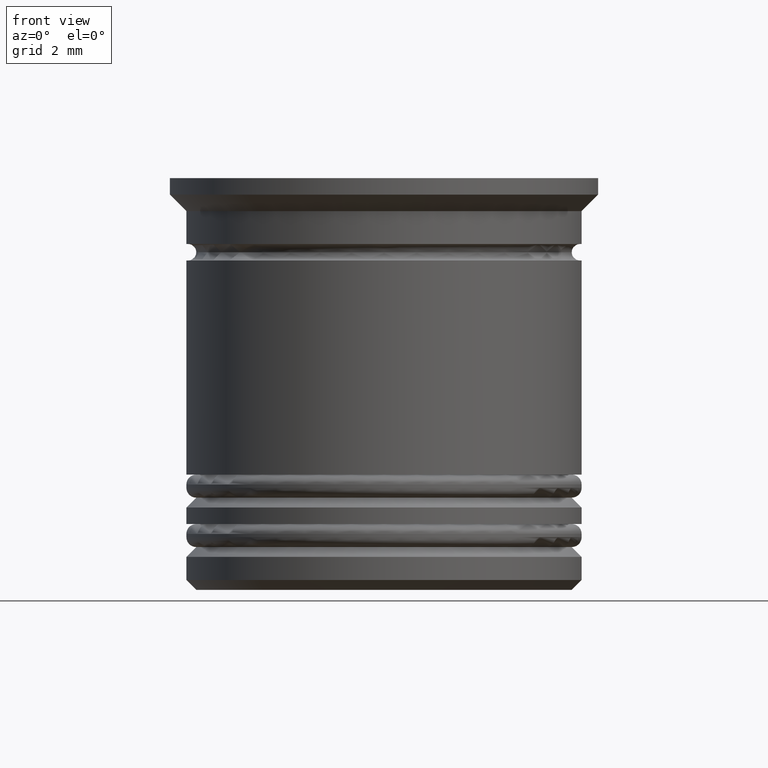
[diagram: clean part render]
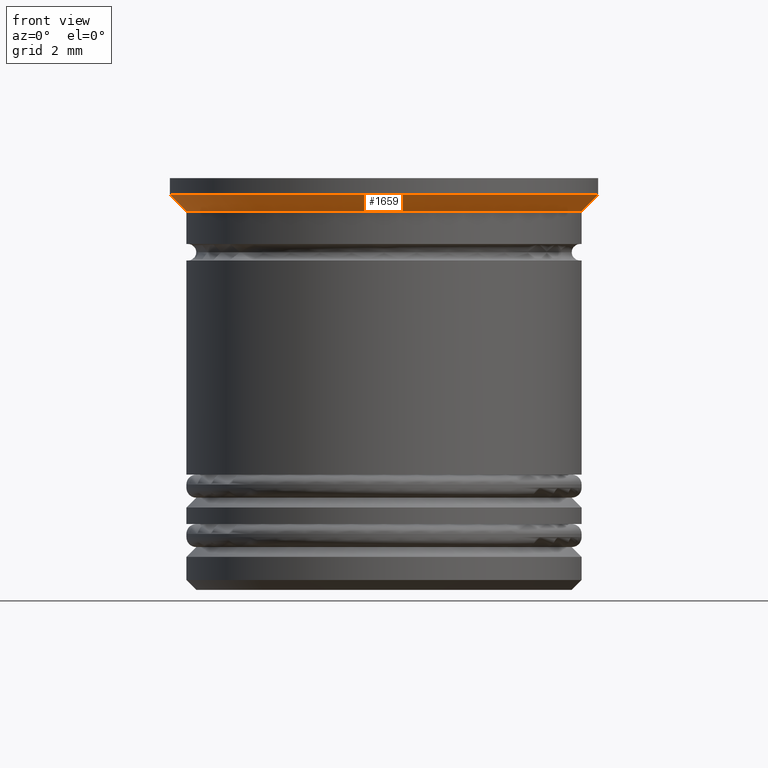
[diagram: same view with one face highlighted and labeled with its STEP entity id]
A machine part, front view. The second image highlights one B-rep face of the part: STEP entity #1659.
In plain terms, the highlighted conical surface has half-angle 45 deg.
Its self-contained STEP definition (entity closure, byte-faithful):
#21 = DIRECTION ( 'NONE',  ( 1.000000000000000000, 0.000000000000000000, 0.000000000000000000 ) ) ;
#28 = ORIENTED_EDGE ( 'NONE', *, *, #1166, .T. ) ;
#111 = VERTEX_POINT ( 'NONE', #1343 ) ;
#184 = FACE_OUTER_BOUND ( 'NONE', #1302, .T. ) ;
#212 = CARTESIAN_POINT ( 'NONE',  ( 0.000000000000000000, 0.000000000000000000, -0.4999999999999956701 ) ) ;
#283 = VERTEX_POINT ( 'NONE', #1863 ) ;
#292 = CARTESIAN_POINT ( 'NONE',  ( 0.000000000000000000, 0.000000000000000000, -0.9999999999999995559 ) ) ;
#312 = CIRCLE ( 'NONE', #947, 5.999999999999998224 ) ;
#381 = EDGE_CURVE ( 'NONE', #1100, #111, #312, .T. ) ;
#384 = DIRECTION ( 'NONE',  ( 0.7071067811865493491, 0.000000000000000000, 0.7071067811865456854 ) ) ;
#421 = ORIENTED_EDGE ( 'NONE', *, *, #1571, .F. ) ;
#470 = CARTESIAN_POINT ( 'NONE',  ( -5.999999999999998224, 7.347880794884117764E-16, -0.9999999999999995559 ) ) ;
#483 = CARTESIAN_POINT ( 'NONE',  ( 0.000000000000000000, 0.000000000000000000, -0.4999999999999956701 ) ) ;
#506 = DIRECTION ( 'NONE',  ( -0.000000000000000000, -0.000000000000000000, 1.000000000000000000 ) ) ;
#613 = EDGE_CURVE ( 'NONE', #283, #667, #1173, .T. ) ;
#667 = VERTEX_POINT ( 'NONE', #1711 ) ;
#841 = DIRECTION ( 'NONE',  ( -1.000000000000000000, 0.000000000000000000, 0.000000000000000000 ) ) ;
#861 = LINE ( 'NONE', #1788, #1846 ) ;
#898 = DIRECTION ( 'NONE',  ( -0.000000000000000000, -0.000000000000000000, 1.000000000000000000 ) ) ;
#947 = AXIS2_PLACEMENT_3D ( 'NONE', #292, #898, #1493 ) ;
#1015 = AXIS2_PLACEMENT_3D ( 'NONE', #212, #506, #841 ) ;
#1100 = VERTEX_POINT ( 'NONE', #470 ) ;
#1156 = CARTESIAN_POINT ( 'NONE',  ( 6.500000000000000000, 0.000000000000000000, -0.4999999999999956701 ) ) ;
#1166 = EDGE_CURVE ( 'NONE', #111, #667, #1746, .T. ) ;
#1169 = AXIS2_PLACEMENT_3D ( 'NONE', #483, #1261, #21 ) ;
#1173 = CIRCLE ( 'NONE', #1015, 6.500000000000000000 ) ;
#1261 = DIRECTION ( 'NONE',  ( -0.000000000000000000, -0.000000000000000000, 1.000000000000000000 ) ) ;
#1302 = EDGE_LOOP ( 'NONE', ( #421, #1675, #28, #1699 ) ) ;
#1328 = VECTOR ( 'NONE', #384, 1000.000000000000000 ) ;
#1343 = CARTESIAN_POINT ( 'NONE',  ( 5.999999999999998224, 0.000000000000000000, -0.9999999999999995559 ) ) ;
#1493 = DIRECTION ( 'NONE',  ( 1.000000000000000000, 0.000000000000000000, 0.000000000000000000 ) ) ;
#1571 = EDGE_CURVE ( 'NONE', #1100, #283, #861, .T. ) ;
#1659 = ADVANCED_FACE ( 'NONE', ( #184 ), #1747, .T. ) ;
#1675 = ORIENTED_EDGE ( 'NONE', *, *, #381, .T. ) ;
#1699 = ORIENTED_EDGE ( 'NONE', *, *, #613, .F. ) ;
#1711 = CARTESIAN_POINT ( 'NONE',  ( 6.500000000000000000, 0.000000000000000000, -0.4999999999999956701 ) ) ;
#1746 = LINE ( 'NONE', #1156, #1328 ) ;
#1747 = CONICAL_SURFACE ( 'NONE', #1169, 6.500000000000000000, 0.7853981633974509435 ) ;
#1775 = DIRECTION ( 'NONE',  ( -0.7071067811865493491, 8.659560562354955045E-17, 0.7071067811865456854 ) ) ;
#1788 = CARTESIAN_POINT ( 'NONE',  ( -6.500000000000000000, 7.960204194457795477E-16, -0.4999999999999956701 ) ) ;
#1846 = VECTOR ( 'NONE', #1775, 1000.000000000000000 ) ;
#1863 = CARTESIAN_POINT ( 'NONE',  ( -6.500000000000000000, 7.960204194457795477E-16, -0.4999999999999956701 ) ) ;